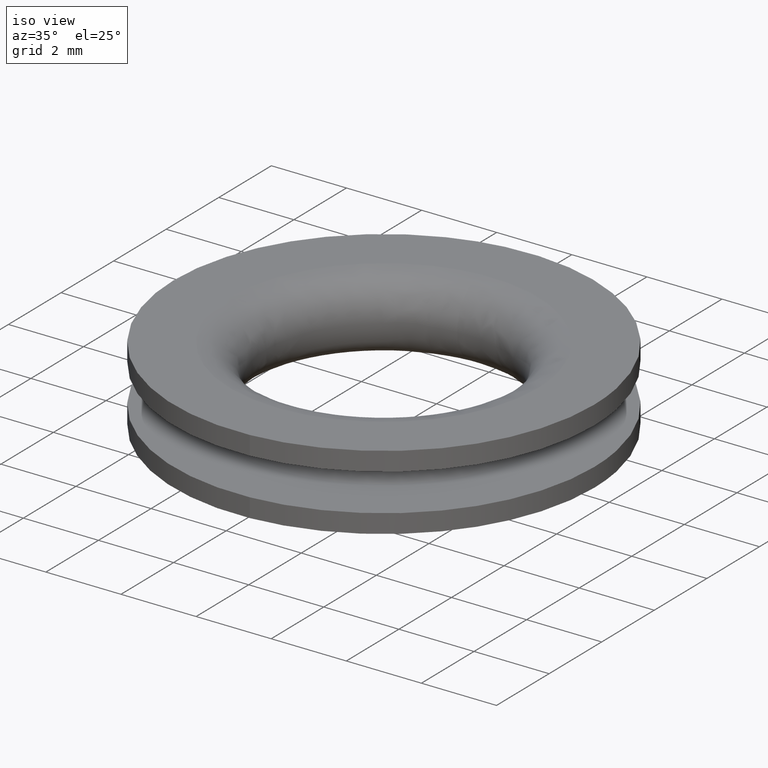
[diagram: clean part render]
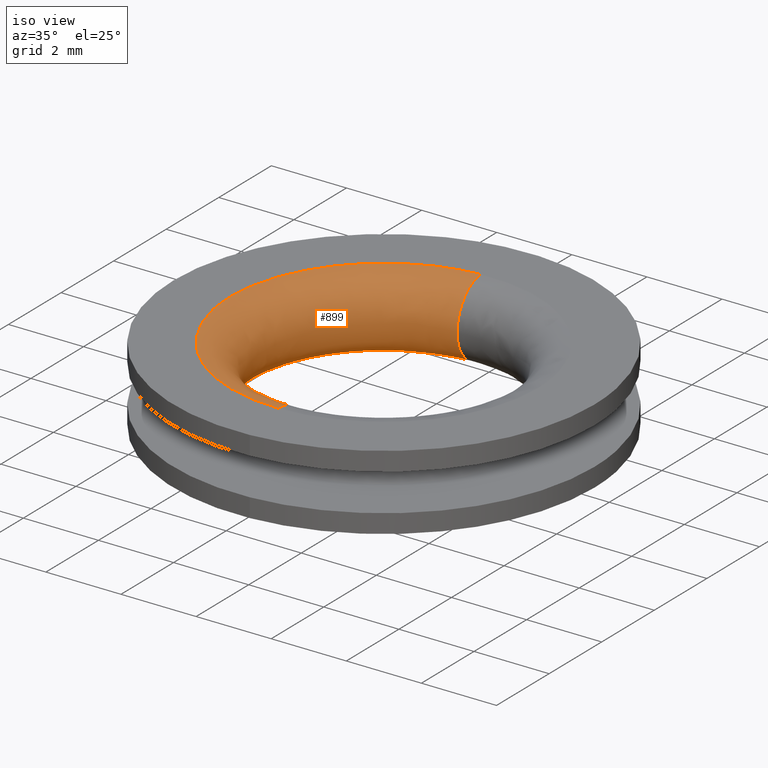
[diagram: same view with one face highlighted and labeled with its STEP entity id]
A machine part, iso view. The second image highlights one B-rep face of the part: STEP entity #899.
In plain terms, the highlighted face is a freeform B-spline surface patch.
Its self-contained STEP definition (entity closure, byte-faithful):
#701=CARTESIAN_POINT('',(-0.285905240904226,4.090019318950484,5.493328E-016));
#702=VERTEX_POINT('',#701);
#720=CARTESIAN_POINT('',(0.051518769026480,-4.099674319610783,3.946466E-012));
#721=VERTEX_POINT('',#720);
#735=CARTESIAN_POINT('',(0.051520763526235,-4.099676281222010,2.0));
#736=VERTEX_POINT('',#735);
#737=CARTESIAN_POINT('',(0.051518769026480,-4.099674319610783,3.946466E-012));
#738=CARTESIAN_POINT('',(0.038952754106957,-3.099755261782994,0.000001986532888));
#739=CARTESIAN_POINT('',(0.038953738873623,-3.099755249414191,1.000000000000986));
#740=CARTESIAN_POINT('',(0.038954723642245,-3.099755237045362,1.999999999972842));
#741=CARTESIAN_POINT('',(0.051520763526235,-4.099676281222010,2.000000000000000));
#749=(BOUNDED_CURVE()B_SPLINE_CURVE(2,(#737,#738,#739,#740,#741),.UNSPECIFIED.,.F.,.U.)B_SPLINE_CURVE_WITH_KNOTS((3,2,3),(-3.781080124178481,-2.0,-0.218917462625159),.UNSPECIFIED.)CURVE()GEOMETRIC_REPRESENTATION_ITEM()RATIONAL_B_SPLINE_CURVE((0.930395460956461,0.682054729921889,1.0,0.682054299135897,0.930396133914253))REPRESENTATION_ITEM(''));
#750=EDGE_CURVE('',#721,#736,#749,.T.);
#767=CARTESIAN_POINT('',(-0.285905125439712,4.090017668716365,1.999999999997197));
#768=VERTEX_POINT('',#767);
#784=CARTESIAN_POINT('',(-0.285905240904226,4.090019318950484,5.493328E-016));
#785=CARTESIAN_POINT('',(-0.216171990722058,3.092453665041473,0.000000019980061));
#786=CARTESIAN_POINT('',(-0.216171990668566,3.092453665045213,0.999999999999299));
#787=CARTESIAN_POINT('',(-0.216171990615075,3.092453665048953,1.999998325751311));
#788=CARTESIAN_POINT('',(-0.285905125439712,4.090017668716365,1.999999999997197));
#796=(BOUNDED_CURVE()B_SPLINE_CURVE(2,(#784,#785,#786,#787,#788),.UNSPECIFIED.,.F.,.U.)B_SPLINE_CURVE_WITH_KNOTS((3,2,3),(-3.781082513136153,-2.0,-0.218919496460487),.UNSPECIFIED.)CURVE()GEOMETRIC_REPRESENTATION_ITEM()RATIONAL_B_SPLINE_CURVE((0.909467611331238,0.666712038092175,0.977505800795127,0.666712388760994,0.909467063529378))REPRESENTATION_ITEM(''));
#797=EDGE_CURVE('',#702,#768,#796,.T.);
#802=CARTESIAN_POINT('',(0.053304423514437,-4.241607962095417,0.010125151079517));
#803=CARTESIAN_POINT('',(-4.188303538580980,-4.294912385609854,0.010125151079517));
#804=CARTESIAN_POINT('',(-4.241607962095417,-0.053304423514437,0.010125151079517));
#805=CARTESIAN_POINT('',(-4.291946177803203,3.952272646200892,0.010125151079517));
#806=CARTESIAN_POINT('',(-0.295804470582689,4.231616615533683,0.010125151079517));
#807=CARTESIAN_POINT('',(0.038954723638394,-3.099755237031830,-0.153623500302960));
#808=CARTESIAN_POINT('',(-3.060800513393434,-3.138709960670222,-0.153623500302960));
#809=CARTESIAN_POINT('',(-3.099755237031830,-0.038954723638394,-0.153623500302960));
#810=CARTESIAN_POINT('',(-3.136542264300130,2.888309797303060,-0.153623500302960));
#811=CARTESIAN_POINT('',(-0.216173079883871,3.092453588905339,-0.153623500302960));
#812=CARTESIAN_POINT('',(0.038954723638394,-3.099755237031829,1.000000000000000));
#813=CARTESIAN_POINT('',(-3.060800513393435,-3.138709960670222,1.000000000000000));
#814=CARTESIAN_POINT('',(-3.099755237031829,-0.038954723638394,1.000000000000000));
#815=CARTESIAN_POINT('',(-3.136542264300131,2.888309797303061,1.000000000000000));
#816=CARTESIAN_POINT('',(-0.216173079883871,3.092453588905341,1.000000000000000));
#817=CARTESIAN_POINT('',(0.038954723638394,-3.099755237031830,2.153623500302960));
#818=CARTESIAN_POINT('',(-3.060800513393434,-3.138709960670222,2.153623500302960));
#819=CARTESIAN_POINT('',(-3.099755237031830,-0.038954723638394,2.153623500302960));
#820=CARTESIAN_POINT('',(-3.136542264300130,2.888309797303060,2.153623500302961));
#821=CARTESIAN_POINT('',(-0.216173079883871,3.092453588905339,2.153623500302961));
#822=CARTESIAN_POINT('',(0.053304423514437,-4.241607962095417,1.989874848920483));
#823=CARTESIAN_POINT('',(-4.188303538580980,-4.294912385609854,1.989874848920484));
#824=CARTESIAN_POINT('',(-4.241607962095417,-0.053304423514437,1.989874848920483));
#825=CARTESIAN_POINT('',(-4.291946177803203,3.952272646200892,1.989874848920483));
#826=CARTESIAN_POINT('',(-0.295804470582689,4.231616615533683,1.989874848920483));
#834=(BOUNDED_SURFACE()B_SPLINE_SURFACE(2,2,((#802,#807,#812,#817,#822),(#803,#808,#813,#818,#823),(#804,#809,#814,#819,#824),(#805,#810,#815,#820,#825),(#806,#811,#816,#821,#826)),.UNSPECIFIED.,.F.,.F.,.U.)B_SPLINE_SURFACE_WITH_KNOTS((3,2,3),(3,2,3),(0.0,7.028281100208578,13.775430956408810),(0.0,1.826255925743964,3.652511851487928),.UNSPECIFIED.)GEOMETRIC_REPRESENTATION_ITEM()RATIONAL_B_SPLINE_SURFACE(((0.985666422713185,0.650291505402073,1.0,0.650291505402073,0.985666422713185),(0.696971411488379,0.459825533217814,0.707106781186548,0.459825533217814,0.696971411488379),(0.985666422713185,0.650291505402073,1.0,0.650291505402073,0.985666422713185),(0.708519211937372,0.467444172105185,0.718822509939086,0.467444172105185,0.708519211937372),(0.963494645851120,0.635663718738322,0.977505800795127,0.635663718738322,0.963494645851120)))REPRESENTATION_ITEM('')SURFACE());
#835=CARTESIAN_POINT('',(-4.100000000000001,0.0,0.0));
#836=VERTEX_POINT('',#835);
#837=CARTESIAN_POINT('',(-4.100000000000001,0.0,0.0));
#838=CARTESIAN_POINT('',(-4.100000000000001,3.823402094439920,0.0));
#839=CARTESIAN_POINT('',(-0.285905240904226,4.090019318950483,5.493328E-016));
#847=(BOUNDED_CURVE()B_SPLINE_CURVE(2,(#837,#838,#839),.UNSPECIFIED.,.F.,.U.)B_SPLINE_CURVE_WITH_KNOTS((3,3),(0.0,0.237833732333640),.UNSPECIFIED.)CURVE()GEOMETRIC_REPRESENTATION_ITEM()RATIONAL_B_SPLINE_CURVE((1.0,0.721360450377532,0.972879973254873))REPRESENTATION_ITEM(''));
#848=EDGE_CURVE('',#836,#702,#847,.T.);
#849=ORIENTED_EDGE('',*,*,#848,.T.);
#850=ORIENTED_EDGE('',*,*,#797,.T.);
#851=CARTESIAN_POINT('',(-4.100000000000001,0.0,2.0));
#852=VERTEX_POINT('',#851);
#853=CARTESIAN_POINT('',(-4.100000000000001,0.0,2.0));
#854=CARTESIAN_POINT('',(-4.099999941624826,3.823401259454132,1.999999999998598));
#855=CARTESIAN_POINT('',(-0.285905125439712,4.090017668716365,1.999999999997197));
#863=(BOUNDED_CURVE()B_SPLINE_CURVE(2,(#853,#854,#855),.UNSPECIFIED.,.F.,.U.)B_SPLINE_CURVE_WITH_KNOTS((3,3),(0.0,0.237833732338157),.UNSPECIFIED.)CURVE()GEOMETRIC_REPRESENTATION_ITEM()RATIONAL_B_SPLINE_CURVE((1.0,0.721360450372240,0.972879973264427))REPRESENTATION_ITEM(''));
#864=EDGE_CURVE('',#852,#768,#863,.T.);
#865=ORIENTED_EDGE('',*,*,#864,.F.);
#866=CARTESIAN_POINT('',(0.051520763526235,-4.099676281222010,2.000000000000000));
#867=CARTESIAN_POINT('',(0.025761398771408,-4.100000000000001,2.000000000000000));
#868=CARTESIAN_POINT('',(0.0,-4.100000000000001,2.0));
#869=CARTESIAN_POINT('',(-4.100000000000001,-4.100000000000001,2.0));
#870=CARTESIAN_POINT('',(-4.100000000000001,0.0,2.0));
#878=(BOUNDED_CURVE()B_SPLINE_CURVE(2,(#866,#867,#868,#869,#870),.UNSPECIFIED.,.F.,.U.)B_SPLINE_CURVE_WITH_KNOTS((3,2,3),(0.747784295921328,0.750000000000000,1.0),.UNSPECIFIED.)CURVE()GEOMETRIC_REPRESENTATION_ITEM()RATIONAL_B_SPLINE_CURVE((0.994854295643092,0.997404141201839,1.0,0.707106781186547,1.0))REPRESENTATION_ITEM(''));
#879=EDGE_CURVE('',#736,#852,#878,.T.);
#880=ORIENTED_EDGE('',*,*,#879,.F.);
#881=ORIENTED_EDGE('',*,*,#750,.F.);
#882=CARTESIAN_POINT('',(0.051518769026480,-4.099674319610783,3.946466E-012));
#883=CARTESIAN_POINT('',(0.025760388998972,-4.099998019786722,3.934223E-012));
#884=CARTESIAN_POINT('',(-0.000000024806035,-4.099998026026948,3.921825E-012));
#885=CARTESIAN_POINT('',(-4.100000012325089,-4.099999019214738,1.948592E-012));
#886=CARTESIAN_POINT('',(-4.100000000000001,0.0,0.0));
#894=(BOUNDED_CURVE()B_SPLINE_CURVE(2,(#882,#883,#884,#885,#886),.UNSPECIFIED.,.F.,.U.)B_SPLINE_CURVE_WITH_KNOTS((3,2,3),(0.747784380410366,0.750000000000000,1.0),.UNSPECIFIED.)CURVE()GEOMETRIC_REPRESENTATION_ITEM()RATIONAL_B_SPLINE_CURVE((0.994854490104144,0.997404240186904,1.0,0.707106781186547,1.0))REPRESENTATION_ITEM(''));
#895=EDGE_CURVE('',#721,#836,#894,.T.);
#896=ORIENTED_EDGE('',*,*,#895,.T.);
#897=EDGE_LOOP('',(#849,#850,#865,#880,#881,#896));
#898=FACE_OUTER_BOUND('',#897,.T.);
#899=ADVANCED_FACE('',(#898),#834,.T.);